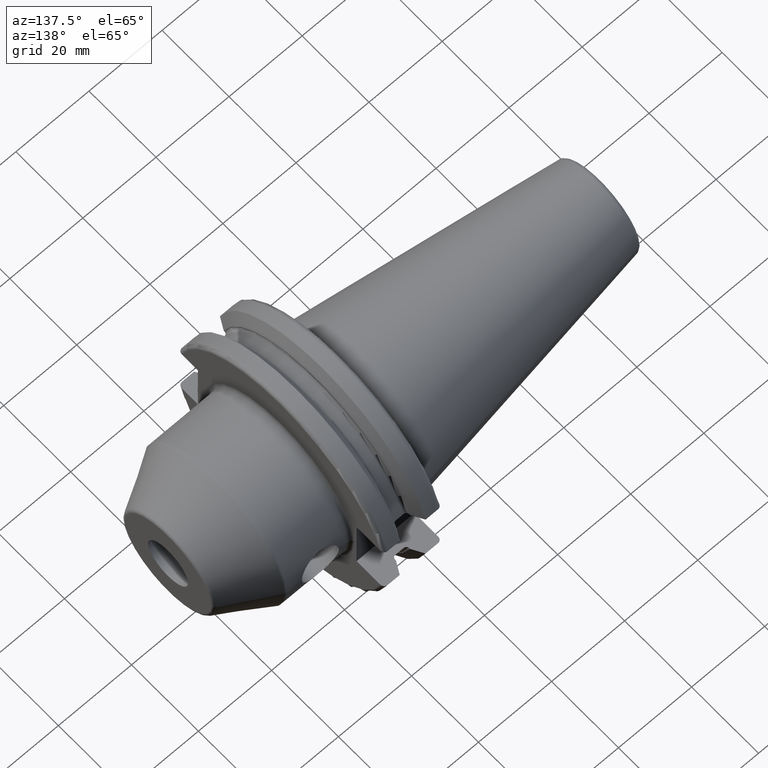
[diagram: clean part render]
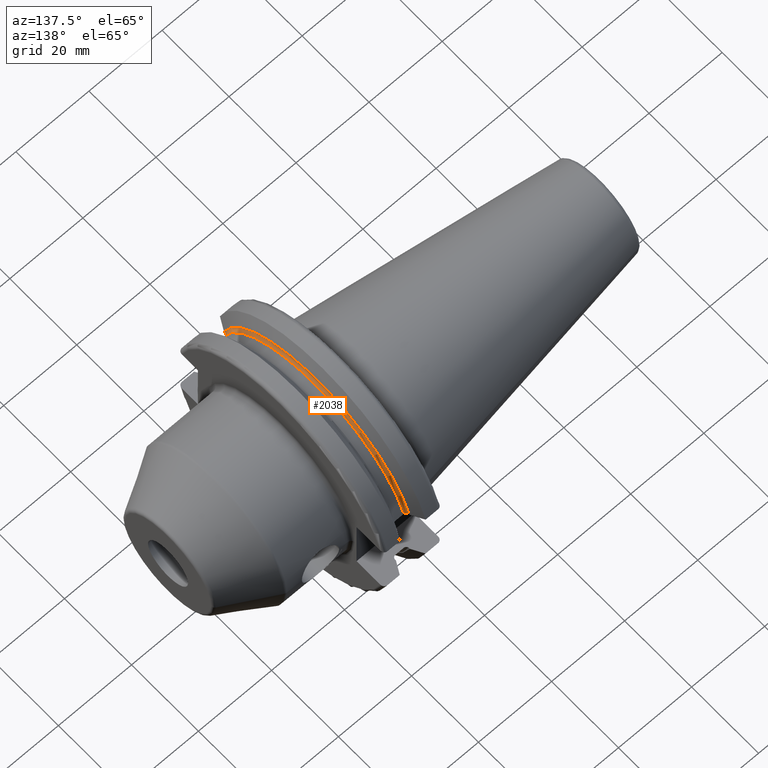
[diagram: same view with one face highlighted and labeled with its STEP entity id]
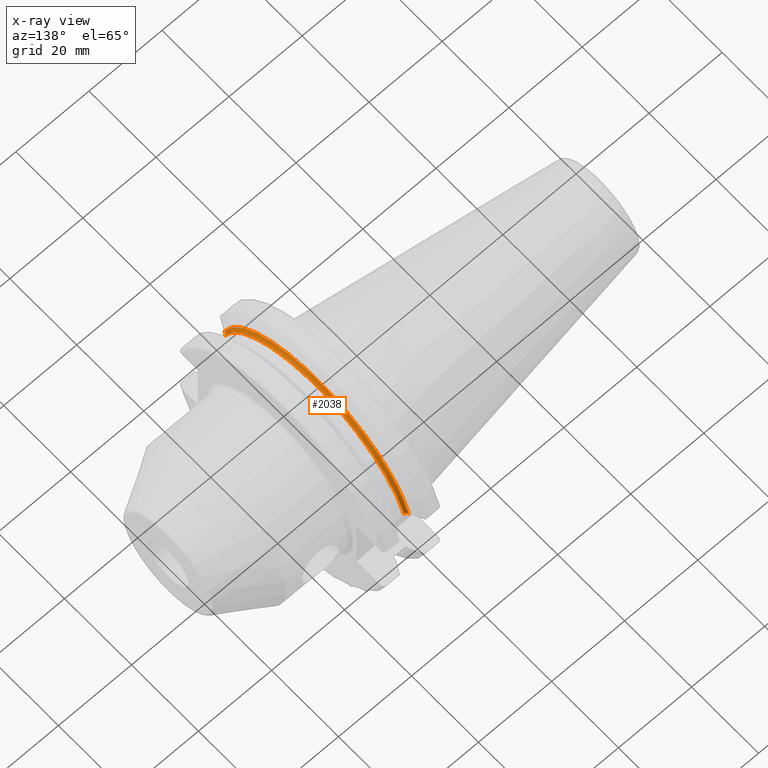
[diagram: x-ray of the same camera — body ghosted, the highlighted face saturated]
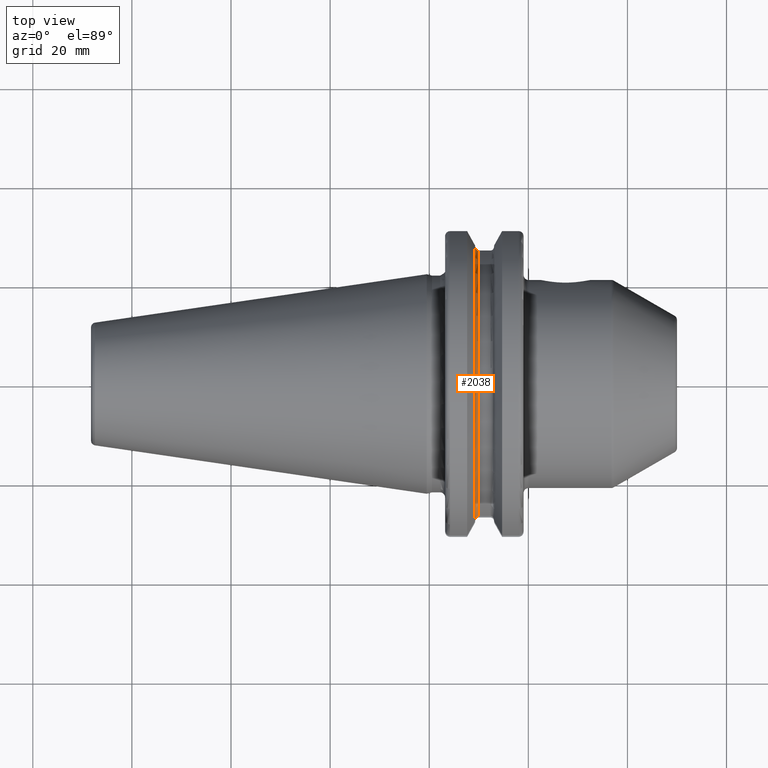
[diagram: same view with one face highlighted and labeled with its STEP entity id]
A machine part, auxiliary view. The second image highlights one B-rep face of the part: STEP entity #2038.
The next image is the same camera in x-ray: the body ghosted, the highlighted face saturated — about 0% of this face is hidden behind the body in this view.
A second angle (top view) of the same face is appended — the face is thin or edge-on in the first view.
In plain terms, the highlighted toroidal blend (fillet) surface has major radius 28.75 mm and minor (blend) radius 0.75 mm.
Its self-contained STEP definition (entity closure, byte-faithful):
#287=CARTESIAN_POINT('',(1.00125E1,2.680279836137E1,8.1E0));
#288=CARTESIAN_POINT('',(9.954414492742E0,2.680279836137E1,8.1E0));
#289=CARTESIAN_POINT('',(9.841762349365E0,2.681646236359E1,8.1E0));
#290=CARTESIAN_POINT('',(9.678987453991E0,2.687689458627E1,8.1E0));
#291=CARTESIAN_POINT('',(9.535463039595E0,2.697313680177E1,8.1E0));
#292=CARTESIAN_POINT('',(9.417373639506E0,2.709880409232E1,8.1E0));
#293=CARTESIAN_POINT('',(9.329478791834E0,2.724706101014E1,8.1E0));
#294=CARTESIAN_POINT('',(9.274990825916E0,2.741184090016E1,8.1E0));
#295=CARTESIAN_POINT('',(9.2625E0,2.752639097673E1,8.1E0));
#296=CARTESIAN_POINT('',(9.2625E0,2.758536749801E1,8.1E0));
#298=CARTESIAN_POINT('',(9.2625E0,-2.758536749801E1,8.1E0));
#299=CARTESIAN_POINT('',(9.2625E0,-2.752618761985E1,8.1E0));
#300=CARTESIAN_POINT('',(9.275065021869E0,-2.741125245771E1,8.1E0));
#301=CARTESIAN_POINT('',(9.330017296387E0,-2.724574966430E1,8.1E0));
#302=CARTESIAN_POINT('',(9.418514302459E0,-2.709725570567E1,8.1E0));
#303=CARTESIAN_POINT('',(9.536940885437E0,-2.697190991915E1,8.1E0));
#304=CARTESIAN_POINT('',(9.680259770071E0,-2.687630945530E1,8.1E0));
#305=CARTESIAN_POINT('',(9.842325690080E0,-2.681638482234E1,8.1E0));
#306=CARTESIAN_POINT('',(9.954609318184E0,-2.680279836137E1,8.1E0));
#307=CARTESIAN_POINT('',(1.00125E1,-2.680279836137E1,8.1E0));
#309=CARTESIAN_POINT('',(9.2625E0,0.E0,0.E0));
#310=DIRECTION('',(1.E0,0.E0,0.E0));
#311=DIRECTION('',(0.E0,9.594910434089E-1,2.817391304348E-1));
#312=AXIS2_PLACEMENT_3D('',#309,#310,#311);
#322=CARTESIAN_POINT('',(1.00125E1,0.E0,0.E0));
#323=DIRECTION('',(1.E0,0.E0,0.E0));
#324=DIRECTION('',(0.E0,9.572427986202E-1,2.892857142857E-1));
#325=AXIS2_PLACEMENT_3D('',#322,#323,#324);
#1407=CARTESIAN_POINT('',(9.2625E0,2.758536749801E1,8.1E0));
#1409=VERTEX_POINT('',#1407);
#1419=CARTESIAN_POINT('',(9.2625E0,-2.758536749801E1,8.1E0));
#1421=VERTEX_POINT('',#1419);
#1430=VERTEX_POINT('',#287);
#1431=VERTEX_POINT('',#307);
#2026=CARTESIAN_POINT('',(1.00125E1,0.E0,0.E0));
#2027=DIRECTION('',(1.E0,0.E0,0.E0));
#2028=DIRECTION('',(0.E0,-1.E0,0.E0));
#2029=AXIS2_PLACEMENT_3D('',#2026,#2027,#2028);
#2030=TOROIDAL_SURFACE('',#2029,2.875E1,7.5E-1);
#2031=ORIENTED_EDGE('',*,*,#1974,.F.);
#2033=ORIENTED_EDGE('',*,*,#2032,.T.);
#2034=ORIENTED_EDGE('',*,*,#1999,.F.);
#2035=ORIENTED_EDGE('',*,*,#1907,.F.);
#2036=EDGE_LOOP('',(#2031,#2033,#2034,#2035));
#2037=FACE_OUTER_BOUND('',#2036,.F.);
#2038=ADVANCED_FACE('',(#2037),#2030,.F.);
#297=B_SPLINE_CURVE_WITH_KNOTS('',3,(#287,#288,#289,#290,#291,#292,#293,#294,
#295,#296),.UNSPECIFIED.,.F.,.F.,(4,1,1,1,1,1,1,4),(0.E0,1.428571428571E-1,
2.857142857143E-1,4.285714285714E-1,5.714285714286E-1,7.142857142857E-1,
8.571428571429E-1,1.E0),.UNSPECIFIED.);
#308=B_SPLINE_CURVE_WITH_KNOTS('',3,(#298,#299,#300,#301,#302,#303,#304,#305,
#306,#307),.UNSPECIFIED.,.F.,.F.,(4,1,1,1,1,1,1,4),(0.E0,1.428571428571E-1,
2.857142857143E-1,4.285714285714E-1,5.714285714286E-1,7.142857142857E-1,
8.571428571429E-1,1.E0),.UNSPECIFIED.);
#313=CIRCLE('',#312,2.875E1);
#326=CIRCLE('',#325,2.8E1);
#1907=EDGE_CURVE('',#1409,#1421,#313,.T.);
#1974=EDGE_CURVE('',#1430,#1409,#297,.T.);
#1999=EDGE_CURVE('',#1421,#1431,#308,.T.);
#2032=EDGE_CURVE('',#1430,#1431,#326,.T.);